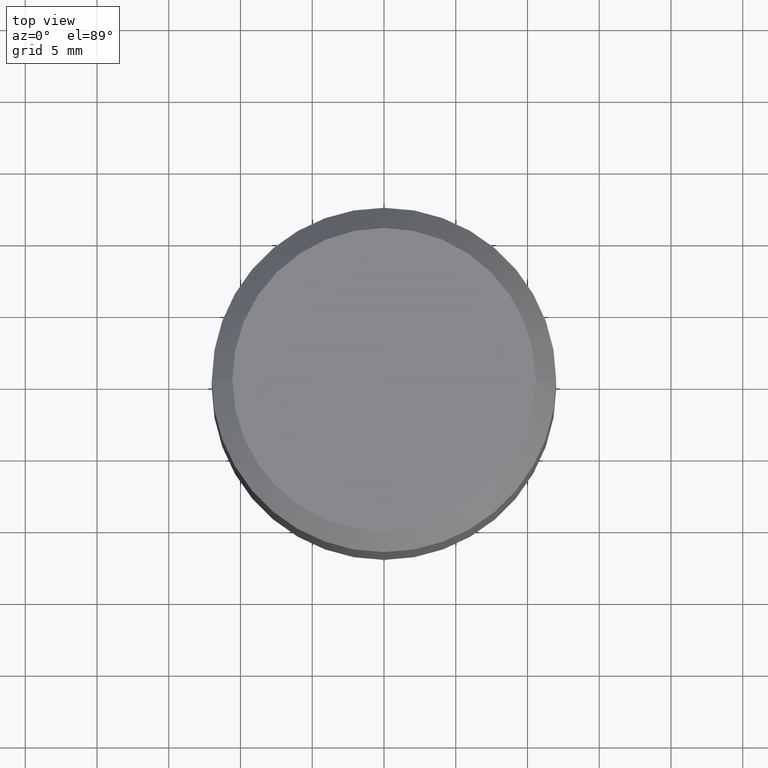
[diagram: clean part render]
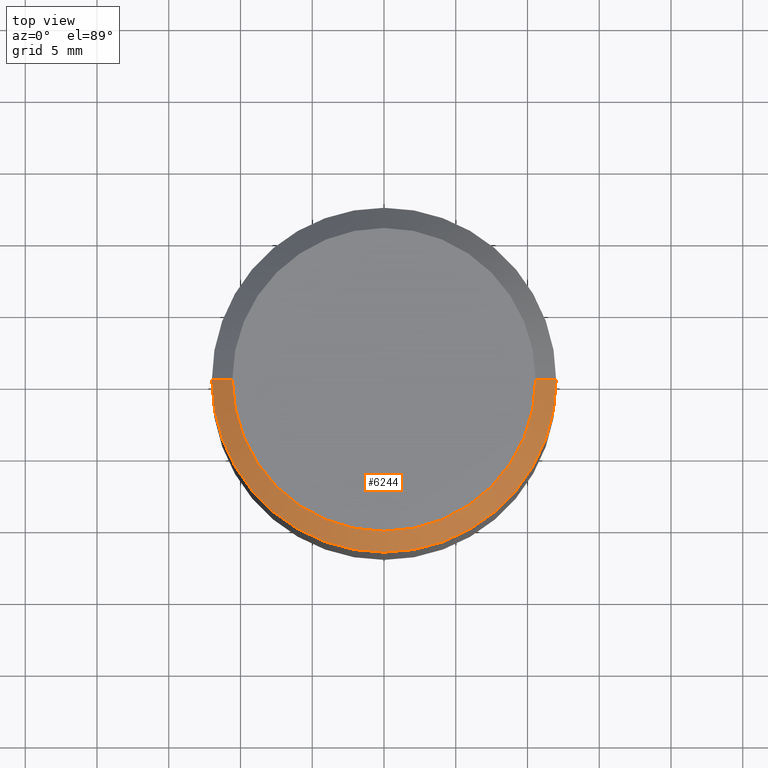
[diagram: same view with one face highlighted and labeled with its STEP entity id]
A machine part, top view. The second image highlights one B-rep face of the part: STEP entity #6244.
In plain terms, the highlighted conical surface has half-angle 45 deg.
Its self-contained STEP definition (entity closure, byte-faithful):
#2851 = DIRECTION ( 'NONE',  ( 0.000000000000000000, 0.000000000000000000, -1.000000000000000000 ) ) ;
#3205 = CARTESIAN_POINT ( 'NONE',  ( -10.57000000000000028, 0.000000000000000000, 38.00000000000000000 ) ) ;
#3236 = CARTESIAN_POINT ( 'NONE',  ( -10.57000000000000028, 0.000000000000000000, 38.00000000000000000 ) ) ;
#4392 = LINE ( 'NONE', #13853, #7047 ) ;
#4635 = DIRECTION ( 'NONE',  ( 0.000000000000000000, 0.000000000000000000, -1.000000000000000000 ) ) ;
#4912 = CARTESIAN_POINT ( 'NONE',  ( 0.000000000000000000, 0.000000000000000000, 36.57000000000000028 ) ) ;
#4927 = ORIENTED_EDGE ( 'NONE', *, *, #7937, .T. ) ;
#5435 = ORIENTED_EDGE ( 'NONE', *, *, #13390, .F. ) ;
#5722 = VERTEX_POINT ( 'NONE', #3205 ) ;
#5904 = CONICAL_SURFACE ( 'NONE', #7448, 10.57000000000000028, 0.7853981633974476129 ) ;
#6244 = ADVANCED_FACE ( 'NONE', ( #17866 ), #5904, .T. ) ;
#6801 = CARTESIAN_POINT ( 'NONE',  ( 0.000000000000000000, 0.000000000000000000, 38.00000000000000000 ) ) ;
#7047 = VECTOR ( 'NONE', #21152, 1000.000000000000000 ) ;
#7420 = CARTESIAN_POINT ( 'NONE',  ( 10.57000000000000028, 1.382013912837788103E-15, 38.00000000000000000 ) ) ;
#7448 = AXIS2_PLACEMENT_3D ( 'NONE', #6801, #4635, #17396 ) ;
#7937 = EDGE_CURVE ( 'NONE', #5722, #12045, #10856, .T. ) ;
#10199 = VECTOR ( 'NONE', #18277, 1000.000000000000000 ) ;
#10437 = VERTEX_POINT ( 'NONE', #21013 ) ;
#10661 = AXIS2_PLACEMENT_3D ( 'NONE', #4912, #2851, #17544 ) ;
#10856 = LINE ( 'NONE', #3236, #10199 ) ;
#11162 = EDGE_CURVE ( 'NONE', #10437, #12045, #17286, .T. ) ;
#12045 = VERTEX_POINT ( 'NONE', #23611 ) ;
#13390 = EDGE_CURVE ( 'NONE', #5722, #18157, #19532, .T. ) ;
#13727 = EDGE_CURVE ( 'NONE', #18157, #10437, #4392, .T. ) ;
#13853 = CARTESIAN_POINT ( 'NONE',  ( 10.57000000000000028, 1.294451666698752259E-15, 38.00000000000000000 ) ) ;
#14418 = DIRECTION ( 'NONE',  ( 0.000000000000000000, 0.000000000000000000, 1.000000000000000000 ) ) ;
#16719 = DIRECTION ( 'NONE',  ( 1.000000000000000000, 0.000000000000000000, 0.000000000000000000 ) ) ;
#17286 = CIRCLE ( 'NONE', #10661, 12.00000000000000000 ) ;
#17396 = DIRECTION ( 'NONE',  ( -1.000000000000000000, 0.000000000000000000, 0.000000000000000000 ) ) ;
#17544 = DIRECTION ( 'NONE',  ( 1.000000000000000000, 0.000000000000000000, 0.000000000000000000 ) ) ;
#17866 = FACE_OUTER_BOUND ( 'NONE', #22745, .T. ) ;
#18157 = VERTEX_POINT ( 'NONE', #7420 ) ;
#18277 = DIRECTION ( 'NONE',  ( -0.7071067811865470176, 0.000000000000000000, -0.7071067811865480168 ) ) ;
#19532 = CIRCLE ( 'NONE', #20263, 10.57000000000000028 ) ;
#19573 = ORIENTED_EDGE ( 'NONE', *, *, #13727, .F. ) ;
#20014 = CARTESIAN_POINT ( 'NONE',  ( 0.000000000000000000, 0.000000000000000000, 38.00000000000000000 ) ) ;
#20263 = AXIS2_PLACEMENT_3D ( 'NONE', #20014, #14418, #16719 ) ;
#21013 = CARTESIAN_POINT ( 'NONE',  ( 11.99999999999999822, 1.469576158976823750E-15, 36.57000000000000028 ) ) ;
#21152 = DIRECTION ( 'NONE',  ( 0.7071067811865470176, 8.659560562354926695E-17, -0.7071067811865480168 ) ) ;
#21419 = ORIENTED_EDGE ( 'NONE', *, *, #11162, .F. ) ;
#22745 = EDGE_LOOP ( 'NONE', ( #19573, #5435, #4927, #21419 ) ) ;
#23611 = CARTESIAN_POINT ( 'NONE',  ( -11.99999999999999822, 0.000000000000000000, 36.57000000000000028 ) ) ;